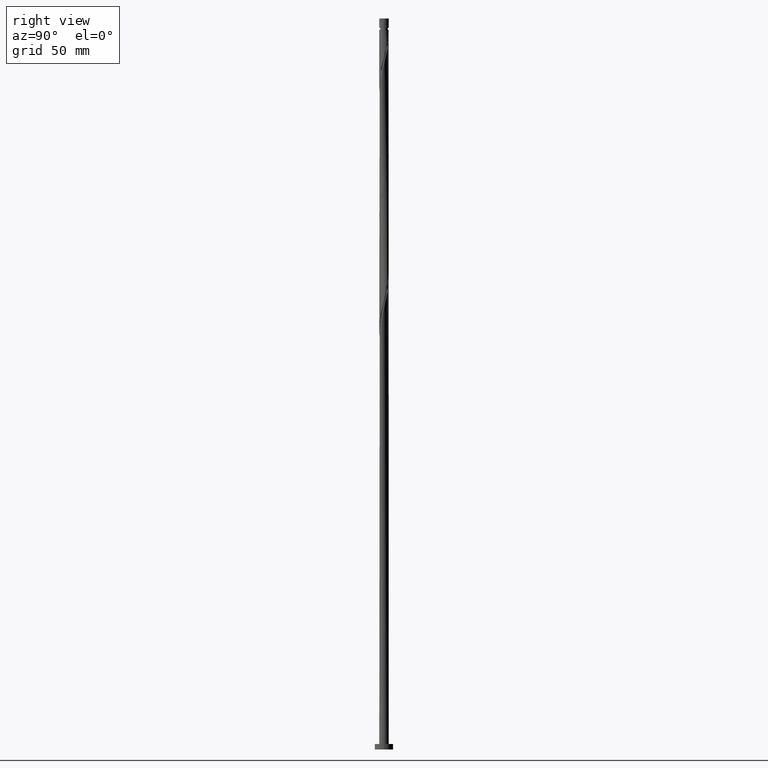
[diagram: clean part render]
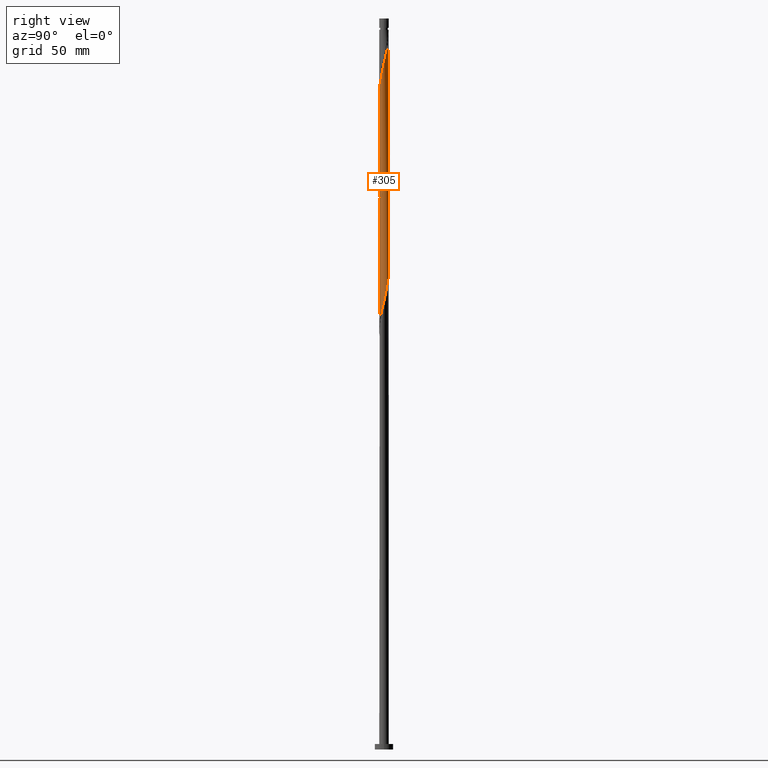
[diagram: same view with one face highlighted and labeled with its STEP entity id]
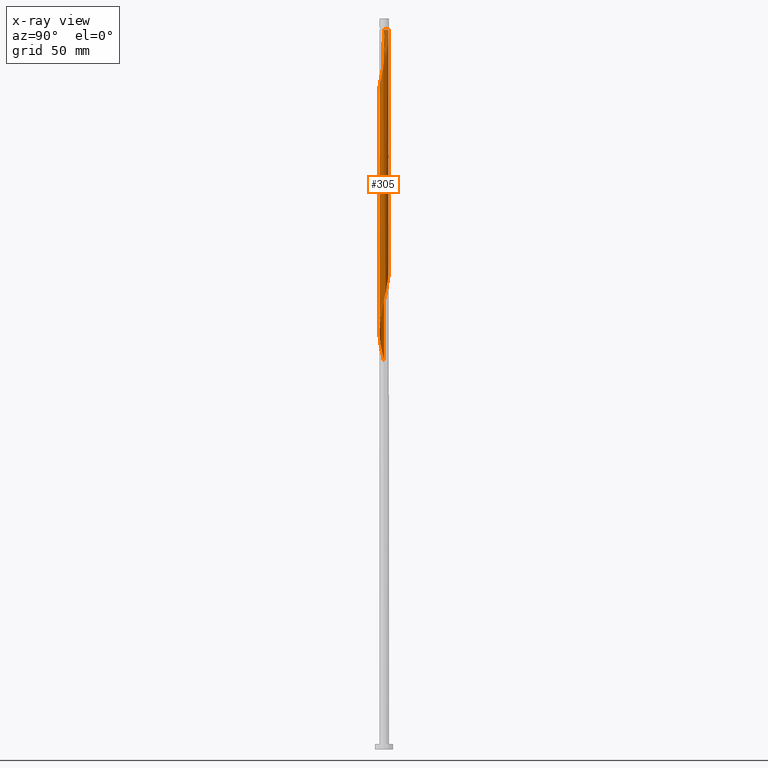
[diagram: x-ray of the same camera — body ghosted, the highlighted face saturated]
A machine part, right view. The second image highlights one B-rep face of the part: STEP entity #305.
The next image is the same camera in x-ray: the body ghosted, the highlighted face saturated — about 0% of this face is hidden behind the body in this view.
In plain terms, the highlighted cylindrical surface (bore or boss wall) has radius 2.6 mm, axis along (-0, -0, -1).
Its self-contained STEP definition (entity closure, byte-faithful):
#9 = CARTESIAN_POINT ( 'NONE',  ( 2.378521340146212193, 1.085040681403031337, 317.1946186715028944 ) ) ;
#11 = CARTESIAN_POINT ( 'NONE',  ( 2.397883794386646450, -1.041551897145976069, 308.3057297826140939 ) ) ;
#22 = CARTESIAN_POINT ( 'NONE',  ( 1.947935995195025471, -1.722075886429970115, 304.9723964492809500 ) ) ;
#32 = CARTESIAN_POINT ( 'NONE',  ( 2.588124133439476005, -0.2482206073398504076, 244.9723964492808079 ) ) ;
#35 = VERTEX_POINT ( 'NONE', #698 ) ;
#41 = CARTESIAN_POINT ( 'NONE',  ( 1.547329210818890077, 2.089443062958790343, 384.9723964492807227 ) ) ;
#42 = CARTESIAN_POINT ( 'NONE',  ( 2.397883794386646450, -1.041551897145976069, 241.6390631159474083 ) ) ;
#51 = CARTESIAN_POINT ( 'NONE',  ( -2.479959445357243553, 0.7808976561518116144, 276.0835075603920359 ) ) ;
#62 = CARTESIAN_POINT ( 'NONE',  ( 0.7851990587523896004, -2.493619755288459139, 361.6390631159473514 ) ) ;
#63 = CARTESIAN_POINT ( 'NONE',  ( -1.547329210818885414, 2.089443062958788566, 269.4168408937252366 ) ) ;
#66 = ORIENTED_EDGE ( 'NONE', *, *, #1016, .F. ) ;
#72 = CARTESIAN_POINT ( 'NONE',  ( 1.079096715020629205, 2.365491551376099899, 387.1946186715029512 ) ) ;
#73 = CARTESIAN_POINT ( 'NONE',  ( -1.286493274995682334, -2.275876116844097297, 223.8612853381695800 ) ) ;
#81 = CARTESIAN_POINT ( 'NONE',  ( 0.2495878758385028096, 2.602380244711542723, 328.3057297826139802 ) ) ;
#84 = FACE_OUTER_BOUND ( 'NONE', #923, .T. ) ;
#92 = CARTESIAN_POINT ( 'NONE',  ( -2.552137584834730966, -0.5668075457370269632, 214.9723964492807511 ) ) ;
#98 = LINE ( 'NONE', #687, #897 ) ;
#100 = CARTESIAN_POINT ( 'NONE',  ( -2.479959445357248438, -0.7808976561518115034, 344.9723964492808932 ) ) ;
#131 = CARTESIAN_POINT ( 'NONE',  ( -1.079096715020628761, -2.365491551376099899, 353.8612853381695800 ) ) ;
#134 = CARTESIAN_POINT ( 'NONE',  ( -0.5173934672954466629, -2.547999999999998266, 293.8612853381696937 ) ) ;
#140 = ORIENTED_EDGE ( 'NONE', *, *, #1310, .T. ) ;
#154 = CARTESIAN_POINT ( 'NONE',  ( 0.2969314949050323449, -2.597404229834846312, 297.1946186715029512 ) ) ;
#157 = ORIENTED_EDGE ( 'NONE', *, *, #853, .F. ) ;
#168 = CARTESIAN_POINT ( 'NONE',  ( 2.599999999999999645, 2.989683084132957886E-16, 312.6533952483578105 ) ) ;
#176 = CARTESIAN_POINT ( 'NONE',  ( 2.397883794386653111, 1.041551897145974737, 379.4168408937251797 ) ) ;
#177 = CARTESIAN_POINT ( 'NONE',  ( -0.8304735344858227286, 2.478909186386042407, 266.0835075603918654 ) ) ;
#184 = EDGE_CURVE ( 'NONE', #333, #35, #1865, .T. ) ;
#188 = CARTESIAN_POINT ( 'NONE',  ( 0.5173934672954464409, -2.548000000000003151, 360.5279520048362656 ) ) ;
#189 = CARTESIAN_POINT ( 'NONE',  ( 1.947935995195025471, -1.722075886429970115, 238.3057297826140655 ) ) ;
#196 = CARTESIAN_POINT ( 'NONE',  ( 0.02367180953326419868, -2.599892237273194961, 229.4168408937252082 ) ) ;
#205 = CARTESIAN_POINT ( 'NONE',  ( 1.509027418418850353, -2.117270944036251823, 364.9723964492807795 ) ) ;
#206 = CARTESIAN_POINT ( 'NONE',  ( -2.378521340146212193, -1.085040681403031559, 283.8612853381696368 ) ) ;
#215 = CARTESIAN_POINT ( 'NONE',  ( 2.479959445357248438, 0.7808976561518106152, 378.3057297826140939 ) ) ;
#216 = CARTESIAN_POINT ( 'NONE',  ( -0.5637025146954277588, 2.538156708110444804, 264.9723964492808364 ) ) ;
#227 = CARTESIAN_POINT ( 'NONE',  ( -2.599999999999998757, 0.1243943981455614828, 345.4781800561270302 ) ) ;
#238 = CARTESIAN_POINT ( 'NONE',  ( -2.562035096327837547, 0.5202434151576464938, 343.8612853381695800 ) ) ;
#245 = CARTESIAN_POINT ( 'NONE',  ( -2.600000000000004974, -0.1243943981455340880, 342.2443906202120729 ) ) ;
#246 = EDGE_CURVE ( 'NONE', #333, #652, #823, .T. ) ;
#259 = CARTESIAN_POINT ( 'NONE',  ( -2.128933464307713130, -1.517339563308513162, 348.3057297826140939 ) ) ;
#261 = CARTESIAN_POINT ( 'NONE',  ( -0.5637025146954277588, 2.538156708110444804, 331.6390631159474651 ) ) ;
#299 = CARTESIAN_POINT ( 'NONE',  ( 1.079096715020626096, -2.365491551376097235, 300.5279520048363224 ) ) ;
#305 = ADVANCED_FACE ( 'NONE', ( #84 ), #1287, .T. ) ;
#307 = CARTESIAN_POINT ( 'NONE',  ( -2.600000000000003197, 9.118533406605447967E-16, 341.7358420946480919 ) ) ;
#309 = CARTESIAN_POINT ( 'NONE',  ( 1.766938526082341365, -1.926812209551426402, 303.8612853381696368 ) ) ;
#327 = CARTESIAN_POINT ( 'NONE',  ( -0.5173934672955170511, 2.548000000000707477, 393.8612853381695800 ) ) ;
#328 = CARTESIAN_POINT ( 'NONE',  ( 1.035846166874037744, 2.384747936066275997, 258.3057297826142076 ) ) ;
#333 = VERTEX_POINT ( 'NONE', #998 ) ;
#338 = CARTESIAN_POINT ( 'NONE',  ( -1.766938526082341365, 1.926812209551426402, 270.5279520048362656 ) ) ;
#348 = CARTESIAN_POINT ( 'NONE',  ( -1.947935995195025916, 1.722075886429969449, 271.6390631159474083 ) ) ;
#358 = CARTESIAN_POINT ( 'NONE',  ( -2.239736819813914259, -1.320446507045950790, 218.3057297826141507 ) ) ;
#367 = CARTESIAN_POINT ( 'NONE',  ( 2.465329462490476242, -0.8259241135700327030, 371.6390631159474083 ) ) ;
#368 = CARTESIAN_POINT ( 'NONE',  ( 2.465329462490473578, 0.8259241135700279290, 249.4168408937252366 ) ) ;
#383 = DIRECTION ( 'NONE',  ( -0.000000000000000000, -0.000000000000000000, -1.000000000000000000 ) ) ;
#406 = CARTESIAN_POINT ( 'NONE',  ( -2.600000000000003197, 9.118533406605447967E-16, 341.7358420946480919 ) ) ;
#408 = CARTESIAN_POINT ( 'NONE',  ( -2.128933464307709134, 1.517339563308511607, 339.4168408937250661 ) ) ;
#414 = CARTESIAN_POINT ( 'NONE',  ( -1.547329210818889189, -2.089443062958790343, 351.6390631159474651 ) ) ;
#418 = DIRECTION ( 'NONE',  ( -0.000000000000000000, -0.000000000000000000, -1.000000000000000000 ) ) ;
#425 = CARTESIAN_POINT ( 'NONE',  ( 0.02367180953326419868, -2.599892237273194961, 296.0835075603919790 ) ) ;
#440 = CARTESIAN_POINT ( 'NONE',  ( 2.600000000000000089, 3.184081677783118191E-16, 393.8612853381696368 ) ) ;
#468 = CARTESIAN_POINT ( 'NONE',  ( 1.916256930661816238, 1.757259051958633744, 253.8612853381696937 ) ) ;
#477 = CARTESIAN_POINT ( 'NONE',  ( -2.552137584834730966, -0.5668075457370269632, 281.6390631159473514 ) ) ;
#489 = CARTESIAN_POINT ( 'NONE',  ( 0.8304735344858218404, -2.478909186386042407, 232.7501742270584657 ) ) ;
#500 = CARTESIAN_POINT ( 'NONE',  ( -1.731561561842015928, -1.958665771228395025, 221.6390631159473514 ) ) ;
#509 = CARTESIAN_POINT ( 'NONE',  ( 0.2495878758385020879, -2.602380244711547164, 359.4168408937251797 ) ) ;
#510 = CARTESIAN_POINT ( 'NONE',  ( -1.916256930661816238, -1.757259051958633966, 287.1946186715029512 ) ) ;
#518 = CARTESIAN_POINT ( 'NONE',  ( 0.2969314949050343433, 2.597404229834851197, 390.5279520048362656 ) ) ;
#519 = CARTESIAN_POINT ( 'NONE',  ( -1.079096715020626318, 2.365491551376097235, 333.8612853381697505 ) ) ;
#528 = CARTESIAN_POINT ( 'NONE',  ( -2.588124133439476005, 0.2482206073398494917, 344.9723964492808364 ) ) ;
#539 = CARTESIAN_POINT ( 'NONE',  ( -1.766938526082341365, 1.926812209551426402, 337.1946186715028944 ) ) ;
#544 = DIRECTION ( 'NONE',  ( -0.000000000000000000, -0.000000000000000000, -1.000000000000000000 ) ) ;
#545 = CARTESIAN_POINT ( 'NONE',  ( -2.263408629347182899, -1.279445730227244837, 347.1946186715029512 ) ) ;
#555 = AXIS2_PLACEMENT_3D ( 'NONE', #674, #1872, #1718 ) ;
#571 = CARTESIAN_POINT ( 'NONE',  ( -0.8304735344858255042, -2.478909186386046848, 354.9723964492806658 ) ) ;
#575 = CARTESIAN_POINT ( 'NONE',  ( -1.731561561842015928, -1.958665771228395025, 288.3057297826139234 ) ) ;
#588 = AXIS2_PLACEMENT_3D ( 'NONE', #1440, #418, #1305 ) ;
#594 = CARTESIAN_POINT ( 'NONE',  ( 2.599999999999999201, 0.1481317173607265836, 313.2589865577425030 ) ) ;
#604 = CARTESIAN_POINT ( 'NONE',  ( 2.583175377692922048, 0.2953048731074875421, 313.8612853381696368 ) ) ;
#606 = CARTESIAN_POINT ( 'NONE',  ( 1.547329210818884970, -2.089443062958789010, 302.7501742270585510 ) ) ;
#615 = CARTESIAN_POINT ( 'NONE',  ( 1.327719895555428131, -2.252073916366149398, 301.6390631159474083 ) ) ;
#623 = CARTESIAN_POINT ( 'NONE',  ( 2.378521340146216190, -1.085040681403034446, 370.5279520048363224 ) ) ;
#624 = CARTESIAN_POINT ( 'NONE',  ( 2.479959445357243109, -0.7808976561518128356, 242.7501742270585510 ) ) ;
#632 = CARTESIAN_POINT ( 'NONE',  ( 0.02367180953326681811, 2.599892237273200291, 391.6390631159474651 ) ) ;
#633 = CARTESIAN_POINT ( 'NONE',  ( 2.263408629347178458, -1.279445730227243949, 240.5279520048364077 ) ) ;
#640 = CARTESIAN_POINT ( 'NONE',  ( -0.2969314949050327335, 2.597404229834846312, 263.8612853381695800 ) ) ;
#648 = CARTESIAN_POINT ( 'NONE',  ( -0.02367180953326649892, -2.599892237273200291, 358.3057297826140939 ) ) ;
#649 = CARTESIAN_POINT ( 'NONE',  ( -2.100952299481614993, -1.555852332688870243, 286.0835075603919222 ) ) ;
#652 = VERTEX_POINT ( 'NONE', #910 ) ;
#658 = CARTESIAN_POINT ( 'NONE',  ( 2.562035096327842432, 0.5202434151576467158, 377.1946186715029512 ) ) ;
#659 = CARTESIAN_POINT ( 'NONE',  ( -2.599999999999999645, -1.315460557018501568E-15, 212.6533952483578389 ) ) ;
#674 = CARTESIAN_POINT ( 'NONE',  ( 0.000000000000000000, 0.000000000000000000, 400.0000000000000000 ) ) ;
#681 = CARTESIAN_POINT ( 'NONE',  ( 1.035846166874037744, 2.384747936066275997, 324.9723964492808932 ) ) ;
#687 = CARTESIAN_POINT ( 'NONE',  ( 2.600000000000000089, 3.184081677783118191E-16, 400.0000000000000000 ) ) ;
#688 = CARTESIAN_POINT ( 'NONE',  ( -2.397883794386652667, -1.041551897145975625, 346.0835075603918654 ) ) ;
#698 = CARTESIAN_POINT ( 'NONE',  ( -0.5173934672955170511, 2.548000000000707921, 393.8612853381695800 ) ) ;
#715 = CARTESIAN_POINT ( 'NONE',  ( -1.035846166874037078, -2.384747936066275997, 291.6390631159475220 ) ) ;
#738 = CARTESIAN_POINT ( 'NONE',  ( -1.286493274995682334, -2.275876116844097297, 290.5279520048363224 ) ) ;
#764 = CARTESIAN_POINT ( 'NONE',  ( 2.263408629347182899, 1.279445730227244393, 380.5279520048364361 ) ) ;
#765 = CARTESIAN_POINT ( 'NONE',  ( 2.614213170551110910, 0.02380220047794641761, 246.0835075603918369 ) ) ;
#775 = CARTESIAN_POINT ( 'NONE',  ( 1.947935995195030801, 1.722075886429970115, 382.7501742270586078 ) ) ;
#776 = CARTESIAN_POINT ( 'NONE',  ( 1.547329210818884970, -2.089443062958789010, 236.0835075603919222 ) ) ;
#780 = VERTEX_POINT ( 'NONE', #1621 ) ;
#785 = CARTESIAN_POINT ( 'NONE',  ( -0.2495878758385039475, -2.602380244711543167, 228.3057297826140655 ) ) ;
#796 = CARTESIAN_POINT ( 'NONE',  ( -2.562035096327837547, 0.5202434151576464938, 277.1946186715028944 ) ) ;
#806 = CARTESIAN_POINT ( 'NONE',  ( 2.128933464307713130, 1.517339563308512274, 381.6390631159472946 ) ) ;
#807 = CARTESIAN_POINT ( 'NONE',  ( -0.5173934672954466629, -2.547999999999998266, 227.1946186715030365 ) ) ;
#820 = CARTESIAN_POINT ( 'NONE',  ( -1.327719895555428797, 2.252073916366149398, 334.9723964492807795 ) ) ;
#823 = LINE ( 'NONE', #831, #1234 ) ;
#829 = CARTESIAN_POINT ( 'NONE',  ( -2.479959445357243553, 0.7808976561518116144, 342.7501742270584941 ) ) ;
#831 = CARTESIAN_POINT ( 'NONE',  ( -2.600000000000000089, 0.000000000000000000, 400.0000000000000000 ) ) ;
#849 = CARTESIAN_POINT ( 'NONE',  ( -1.947935995195029468, -1.722075886429971003, 349.4168408937252366 ) ) ;
#851 = CARTESIAN_POINT ( 'NONE',  ( -0.2969314949050327335, 2.597404229834846312, 330.5279520048362656 ) ) ;
#853 = EDGE_CURVE ( 'NONE', #780, #1828, #1313, .T. ) ;
#859 = CARTESIAN_POINT ( 'NONE',  ( -1.327719895555432350, -2.252073916366152506, 352.7501742270584941 ) ) ;
#897 = VECTOR ( 'NONE', #544, 1000.000000000000000 ) ;
#910 = CARTESIAN_POINT ( 'NONE',  ( -2.600000000000000089, 3.587619700959548970E-16, 345.9867285816911817 ) ) ;
#920 = CARTESIAN_POINT ( 'NONE',  ( -2.263408629347178458, 1.279445730227243949, 273.8612853381697505 ) ) ;
#923 = EDGE_LOOP ( 'NONE', ( #1246, #1098, #1522, #1037, #157, #1046, #140, #66 ) ) ;
#929 = CARTESIAN_POINT ( 'NONE',  ( -0.2969314949050338992, -2.597404229834851197, 357.1946186715028944 ) ) ;
#930 = CARTESIAN_POINT ( 'NONE',  ( 1.286493274995683000, 2.275876116844097297, 257.1946186715030080 ) ) ;
#938 = CARTESIAN_POINT ( 'NONE',  ( 0.8304735344858259483, 2.478909186386046848, 388.3057297826140939 ) ) ;
#939 = CARTESIAN_POINT ( 'NONE',  ( 2.552137584834731410, 0.5668075457370260750, 248.3057297826140939 ) ) ;
#948 = CARTESIAN_POINT ( 'NONE',  ( -2.378521340146212193, -1.085040681403031559, 217.1946186715030080 ) ) ;
#955 = CARTESIAN_POINT ( 'NONE',  ( 2.583175377692926489, -0.2953048731074893185, 373.8612853381696368 ) ) ;
#956 = CARTESIAN_POINT ( 'NONE',  ( 2.583175377692922048, 0.2953048731074875421, 247.1946186715030649 ) ) ;
#986 = CARTESIAN_POINT ( 'NONE',  ( -2.583175377692922048, -0.2953048731074877642, 213.8612853381696937 ) ) ;
#996 = CARTESIAN_POINT ( 'NONE',  ( -2.263408629347178458, 1.279445730227243949, 340.5279520048364361 ) ) ;
#998 = CARTESIAN_POINT ( 'NONE',  ( -2.599999999999964118, 0.000000000000000000, 393.8612853381696368 ) ) ;
#1016 = EDGE_CURVE ( 'NONE', #652, #780, #1446, .T. ) ;
#1034 = CARTESIAN_POINT ( 'NONE',  ( 2.600000000000000089, -0.1243943981455472997, 312.1448467227938295 ) ) ;
#1037 = ORIENTED_EDGE ( 'NONE', *, *, #1417, .T. ) ;
#1046 = ORIENTED_EDGE ( 'NONE', *, *, #1310, .F. ) ;
#1060 = CARTESIAN_POINT ( 'NONE',  ( -0.02367180953326483012, 2.599892237273194961, 262.7501742270586078 ) ) ;
#1064 = LINE ( 'NONE', #1189, #1887 ) ;
#1067 = CARTESIAN_POINT ( 'NONE',  ( -2.397883794386647338, 1.041551897145974959, 274.9723964492807227 ) ) ;
#1072 = VERTEX_POINT ( 'NONE', #307 ) ;
#1077 = CARTESIAN_POINT ( 'NONE',  ( 1.327719895555433904, 2.252073916366151618, 386.0835075603917517 ) ) ;
#1078 = CARTESIAN_POINT ( 'NONE',  ( 0.2969314949050323449, -2.597404229834846312, 230.5279520048362940 ) ) ;
#1086 = CARTESIAN_POINT ( 'NONE',  ( -1.916256930661816238, -1.757259051958633966, 220.5279520048363793 ) ) ;
#1094 = CARTESIAN_POINT ( 'NONE',  ( -0.5637025146954297572, -2.538156708110448800, 356.0835075603918654 ) ) ;
#1095 = CARTESIAN_POINT ( 'NONE',  ( -1.327719895555428797, 2.252073916366149398, 268.3057297826140370 ) ) ;
#1098 = ORIENTED_EDGE ( 'NONE', *, *, #184, .T. ) ;
#1107 = CARTESIAN_POINT ( 'NONE',  ( -0.02367180953326483012, 2.599892237273194961, 329.4168408937253503 ) ) ;
#1114 =( BOUNDED_CURVE ( )  B_SPLINE_CURVE ( 2, ( #406, #245, #1148, #1429, #100, #688, #545, #259, #849, #1722, #414, #859, #131, #571, #1094, #929, #648, #509, #188, #62, #1638, #1526, #205, #1676, #1242, #1371, #1806, #623, #367, #1826, #955, #1538, #1214, #658, #215, #176, #764, #806, #775, #1362, #41, #1077, #72, #938, #1253, #518, #632, #1785, #327 ),
 .UNSPECIFIED., .F., .T. ) 
 B_SPLINE_CURVE_WITH_KNOTS ( ( 3, 2, 2, 2, 2, 2, 2, 2, 2, 2, 2, 2, 2, 2, 2, 2, 2, 2, 2, 2, 2, 2, 2, 2, 3 ),
 ( 0.5545286012773109618, 0.5583333333333333481, 0.5666666666666666519, 0.5749999999999999556, 0.5833333333333332593, 0.5916666666666666741, 0.5999999999999999778, 0.6083333333333333925, 0.6166666666666666963, 0.6250000000000000000, 0.6333333333333333037, 0.6416666666666666075, 0.6500000000000001332, 0.6583333333333334370, 0.6666666666666667407, 0.6750000000000001554, 0.6833333333333334592, 0.6916666666666667629, 0.7000000000000000666, 0.7083333333333333703, 0.7166666666666667851, 0.7250000000000000888, 0.7333333333333335036, 0.7416666666666668073, 0.7500000000000001110 ),
 .UNSPECIFIED. ) 
 CURVE ( )  GEOMETRIC_REPRESENTATION_ITEM ( )  RATIONAL_B_SPLINE_CURVE ( ( 0.9066196499552594545, 0.9068171577856718457, 0.9090909090909711221, 0.9041108139712192848, 0.9090909090909711221, 0.9041108139712192848, 0.9090909090909711221, 0.9041108139712192848, 0.9090909090909711221, 0.9041108139712192848, 0.9090909090909711221, 0.9041108139712192848, 0.9090909090909711221, 0.9041108139712192848, 0.9090909090909711221, 0.9041108139712192848, 0.9090909090909711221, 0.9041108139712192848, 0.9090909090909711221, 0.9041108139712192848, 0.9090909090909711221, 0.9041108139712192848, 0.9090909090909711221, 0.9041108139712192848, 0.9090909090909711221, 0.9041108139712192848, 0.9090909090909711221, 0.9041108139712192848, 0.9090909090909711221, 0.9041108139712192848, 0.9090909090909711221, 0.9041108139712192848, 0.9090909090909711221, 0.9041108139712192848, 0.9090909090909711221, 0.9041108139712192848, 0.9090909090909711221, 0.9041108139712192848, 0.9090909090909711221, 0.9041108139712192848, 0.9090909090909711221, 0.9041108139712192848, 0.9090909090909711221, 0.9041108139712192848, 0.9090909090909711221, 0.9041108139712192848, 0.9090909090909711221, 0.9041108139712191738, 0.9090909090909712331 ) ) 
 REPRESENTATION_ITEM ( '' )  );
#1128 = CARTESIAN_POINT ( 'NONE',  ( 1.731561561842015928, 1.958665771228395025, 321.6390631159473514 ) ) ;
#1140 = CARTESIAN_POINT ( 'NONE',  ( -0.8304735344858227286, 2.478909186386042407, 332.7501742270583804 ) ) ;
#1148 = CARTESIAN_POINT ( 'NONE',  ( -2.588124133439479113, -0.2482206073398485480, 342.7501742270585510 ) ) ;
#1149 = CARTESIAN_POINT ( 'NONE',  ( 0.7851990587523917098, 2.493619755288453366, 326.0835075603918654 ) ) ;
#1167 = CARTESIAN_POINT ( 'NONE',  ( 2.479959445357243109, -0.7808976561518128356, 309.4168408937252366 ) ) ;
#1185 = CARTESIAN_POINT ( 'NONE',  ( 2.588124133439476005, -0.2482206073398504076, 311.6390631159475220 ) ) ;
#1189 = CARTESIAN_POINT ( 'NONE',  ( -2.600000000000000089, 0.000000000000000000, 400.0000000000000000 ) ) ;
#1205 = CARTESIAN_POINT ( 'NONE',  ( -2.614213170551110910, -0.02380220047794789906, 279.4168408937251229 ) ) ;
#1214 = CARTESIAN_POINT ( 'NONE',  ( 2.588124133439479557, 0.2482206073398471602, 376.0835075603918654 ) ) ;
#1215 = CARTESIAN_POINT ( 'NONE',  ( 2.562035096327837547, -0.5202434151576468269, 243.8612853381696084 ) ) ;
#1224 = CARTESIAN_POINT ( 'NONE',  ( 1.327719895555428131, -2.252073916366149398, 234.9723964492807227 ) ) ;
#1232 = CARTESIAN_POINT ( 'NONE',  ( -1.035846166874037078, -2.384747936066275997, 224.9723964492807795 ) ) ;
#1234 = VECTOR ( 'NONE', #383, 1000.000000000000000 ) ;
#1242 = CARTESIAN_POINT ( 'NONE',  ( 1.916256930661818236, -1.757259051958636853, 367.1946186715030080 ) ) ;
#1243 = CARTESIAN_POINT ( 'NONE',  ( 1.731561561842015928, 1.958665771228395025, 254.9723964492807227 ) ) ;
#1246 = ORIENTED_EDGE ( 'NONE', *, *, #246, .F. ) ;
#1253 = CARTESIAN_POINT ( 'NONE',  ( 0.5637025146954313115, 2.538156708110447912, 389.4168408937251229 ) ) ;
#1254 = CARTESIAN_POINT ( 'NONE',  ( -2.600000000000000089, 3.587619700959548970E-16, 345.9867285816912386 ) ) ;
#1264 = CARTESIAN_POINT ( 'NONE',  ( -2.465329462490473134, -0.8259241135700291503, 216.0835075603919506 ) ) ;
#1275 = CARTESIAN_POINT ( 'NONE',  ( 1.286493274995683000, 2.275876116844097297, 323.8612853381695800 ) ) ;
#1287 = CYLINDRICAL_SURFACE ( 'NONE', #555, 2.600000000000000089 ) ;
#1295 = CARTESIAN_POINT ( 'NONE',  ( 2.100952299481615881, 1.555852332688868911, 319.4168408937252366 ) ) ;
#1305 = DIRECTION ( 'NONE',  ( -1.000000000000000000, 0.000000000000000000, 0.000000000000000000 ) ) ;
#1310 = EDGE_CURVE ( 'NONE', #1543, #780, #98, .T. ) ;
#1313 =( BOUNDED_CURVE ( )  B_SPLINE_CURVE ( 2, ( #168, #1034, #1185, #1351, #1167, #11, #1611, #1760, #22, #309, #606, #615, #299, #1733, #1474, #154, #425, #1455, #134, #1314, #715, #738, #1880, #575, #510, #649, #1786, #206, #1387, #477, #1527, #1205, #1777, #796, #51, #1067, #920, #1816, #348, #338, #63, #1095, #1677, #177, #216, #640, #1060, #1639, #1807, #1647, #328, #930, #1659, #1243, #468, #1498, #1363, #1510, #368, #939, #956, #765, #32, #1215, #624, #42, #633, #1540, #189, #1372, #776, #1224, #1794, #489, #1519, #1078, #196, #785, #807, #1379, #1232, #73, #1398, #500, #1086, #1669, #358, #948, #1264, #92, #986, #1568, #659 ),
 .UNSPECIFIED., .F., .T. ) 
 B_SPLINE_CURVE_WITH_KNOTS ( ( 3, 2, 2, 2, 2, 2, 2, 2, 2, 2, 2, 2, 2, 2, 2, 2, 2, 2, 2, 2, 2, 2, 2, 2, 2, 2, 2, 2, 2, 2, 2, 2, 2, 2, 2, 2, 2, 2, 2, 2, 2, 2, 2, 2, 2, 2, 3 ),
 ( 0.5545286012773112949, 0.5583333333333333481, 0.5666666666666666519, 0.5749999999999999556, 0.5833333333333333703, 0.5916666666666666741, 0.5999999999999999778, 0.6083333333333332815, 0.6166666666666666963, 0.6250000000000000000, 0.6333333333333333037, 0.6416666666666667185, 0.6500000000000000222, 0.6583333333333333259, 0.6666666666666666297, 0.6750000000000000444, 0.6833333333333333481, 0.6916666666666666519, 0.6999999999999999556, 0.7083333333333333703, 0.7166666666666666741, 0.7249999999999999778, 0.7333333333333332815, 0.7416666666666666963, 0.7500000000000000000, 0.7583333333333333037, 0.7666666666666667185, 0.7750000000000000222, 0.7833333333333333259, 0.7916666666666666297, 0.8000000000000000444, 0.8083333333333333481, 0.8166666666666666519, 0.8249999999999999556, 0.8333333333333333703, 0.8416666666666666741, 0.8499999999999999778, 0.8583333333333332815, 0.8666666666666666963, 0.8750000000000000000, 0.8833333333333333037, 0.8916666666666667185, 0.9000000000000000222, 0.9083333333333333259, 0.9166666666666666297, 0.9250000000000000444, 0.9295286012773116280 ),
 .UNSPECIFIED. ) 
 CURVE ( )  GEOMETRIC_REPRESENTATION_ITEM ( )  RATIONAL_B_SPLINE_CURVE ( ( 0.9066196499552521271, 0.9068171577856648513, 0.9090909090909637946, 0.9041108139712121794, 0.9090909090909637946, 0.9041108139712121794, 0.9090909090909637946, 0.9041108139712121794, 0.9090909090909637946, 0.9041108139712121794, 0.9090909090909637946, 0.9041108139712121794, 0.9090909090909637946, 0.9041108139712121794, 0.9090909090909637946, 0.9041108139712121794, 0.9090909090909637946, 0.9041108139712121794, 0.9090909090909637946, 0.9041108139712121794, 0.9090909090909637946, 0.9041108139712121794, 0.9090909090909637946, 0.9041108139712121794, 0.9090909090909637946, 0.9041108139712121794, 0.9090909090909637946, 0.9041108139712121794, 0.9090909090909637946, 0.9041108139712121794, 0.9090909090909637946, 0.9041108139712121794, 0.9090909090909637946, 0.9041108139712121794, 0.9090909090909637946, 0.9041108139712121794, 0.9090909090909637946, 0.9041108139712121794, 0.9090909090909637946, 0.9041108139712121794, 0.9090909090909637946, 0.9041108139712121794, 0.9090909090909637946, 0.9041108139712121794, 0.9090909090909637946, 0.9041108139712121794, 0.9090909090909637946, 0.9041108139712121794, 0.9090909090909637946, 0.9041108139712121794, 0.9090909090909637946, 0.9041108139712121794, 0.9090909090909637946, 0.9041108139712121794, 0.9090909090909637946, 0.9041108139712121794, 0.9090909090909637946, 0.9041108139712121794, 0.9090909090909637946, 0.9041108139712121794, 0.9090909090909637946, 0.9041108139712121794, 0.9090909090909637946, 0.9041108139712121794, 0.9090909090909637946, 0.9041108139712121794, 0.9090909090909637946, 0.9041108139712121794, 0.9090909090909637946, 0.9041108139712121794, 0.9090909090909637946, 0.9041108139712121794, 0.9090909090909637946, 0.9041108139712121794, 0.9090909090909637946, 0.9041108139712121794, 0.9090909090909637946, 0.9041108139712121794, 0.9090909090909637946, 0.9041108139712121794, 0.9090909090909637946, 0.9041108139712121794, 0.9090909090909637946, 0.9041108139712121794, 0.9090909090909637946, 0.9041108139712121794, 0.9090909090909637946, 0.9041108139712121794, 0.9090909090909637946, 0.9041108139712121794, 0.9090909090909637946, 0.9063845652765110117, 0.9066196499552521271 ) ) 
 REPRESENTATION_ITEM ( '' )  );
#1314 = CARTESIAN_POINT ( 'NONE',  ( -0.7851990587523902665, -2.493619755288453366, 292.7501742270584373 ) ) ;
#1330 = CARTESIAN_POINT ( 'NONE',  ( 2.552137584834731410, 0.5668075457370260750, 314.9723964492806658 ) ) ;
#1351 = CARTESIAN_POINT ( 'NONE',  ( 2.562035096327837547, -0.5202434151576468269, 310.5279520048362656 ) ) ;
#1362 = CARTESIAN_POINT ( 'NONE',  ( 1.766938526082345140, 1.926812209551428623, 383.8612853381695800 ) ) ;
#1363 = CARTESIAN_POINT ( 'NONE',  ( 2.239736819813914703, 1.320446507045950568, 251.6390631159474651 ) ) ;
#1371 = CARTESIAN_POINT ( 'NONE',  ( 2.100952299481617214, -1.555852332688874462, 368.3057297826139802 ) ) ;
#1372 = CARTESIAN_POINT ( 'NONE',  ( 1.766938526082341365, -1.926812209551426402, 237.1946186715029512 ) ) ;
#1379 = CARTESIAN_POINT ( 'NONE',  ( -0.7851990587523902665, -2.493619755288453366, 226.0835075603918938 ) ) ;
#1387 = CARTESIAN_POINT ( 'NONE',  ( -2.465329462490473134, -0.8259241135700291503, 282.7501742270586647 ) ) ;
#1398 = CARTESIAN_POINT ( 'NONE',  ( -1.509027418418849686, -2.117270944036247826, 222.7501742270586078 ) ) ;
#1407 = CARTESIAN_POINT ( 'NONE',  ( -1.947935995195025916, 1.722075886429969449, 338.3057297826142076 ) ) ;
#1417 = EDGE_CURVE ( 'NONE', #1072, #1828, #1064, .T. ) ;
#1421 = CARTESIAN_POINT ( 'NONE',  ( 0.5173934672954469960, 2.547999999999998266, 327.1946186715030080 ) ) ;
#1429 = CARTESIAN_POINT ( 'NONE',  ( -2.562035096327842432, -0.5202434151576470489, 343.8612853381696368 ) ) ;
#1438 = CARTESIAN_POINT ( 'NONE',  ( 1.509027418418851019, 2.117270944036246494, 322.7501742270586078 ) ) ;
#1440 = CARTESIAN_POINT ( 'NONE',  ( 0.000000000000000000, 0.000000000000000000, 393.8612853381696368 ) ) ;
#1446 =( BOUNDED_CURVE ( )  B_SPLINE_CURVE ( 2, ( #1254, #227, #528, #238, #829, #1843, #996, #408, #1407, #539, #1549, #820, #519, #1140, #261, #851, #1107, #81, #1421, #1149, #681, #1275, #1438, #1128, #1724, #1295, #1861, #9, #1870, #1330, #604, #594, #1471 ),
 .UNSPECIFIED., .F., .T. ) 
 B_SPLINE_CURVE_WITH_KNOTS ( ( 3, 2, 2, 2, 2, 2, 2, 2, 2, 2, 2, 2, 2, 2, 2, 2, 3 ),
 ( 0.4295286012773117390, 0.4333333333333333481, 0.4416666666666666519, 0.4500000000000000111, 0.4583333333333333148, 0.4666666666666666741, 0.4749999999999999778, 0.4833333333333333370, 0.4916666666666666408, 0.5000000000000000000, 0.5083333333333333037, 0.5166666666666667185, 0.5250000000000000222, 0.5333333333333333259, 0.5416666666666666297, 0.5500000000000000444, 0.5545286012773112949 ),
 .UNSPECIFIED. ) 
 CURVE ( )  GEOMETRIC_REPRESENTATION_ITEM ( )  RATIONAL_B_SPLINE_CURVE ( ( 0.9066196499552522381, 0.9068171577856650734, 0.9090909090909637946, 0.9041108139712121794, 0.9090909090909637946, 0.9041108139712121794, 0.9090909090909637946, 0.9041108139712121794, 0.9090909090909637946, 0.9041108139712121794, 0.9090909090909637946, 0.9041108139712121794, 0.9090909090909637946, 0.9041108139712121794, 0.9090909090909637946, 0.9041108139712121794, 0.9090909090909637946, 0.9041108139712121794, 0.9090909090909637946, 0.9041108139712121794, 0.9090909090909637946, 0.9041108139712121794, 0.9090909090909637946, 0.9041108139712121794, 0.9090909090909637946, 0.9041108139712121794, 0.9090909090909637946, 0.9041108139712121794, 0.9090909090909637946, 0.9041108139712121794, 0.9090909090909637946, 0.9063845652765111227, 0.9066196499552521271 ) ) 
 REPRESENTATION_ITEM ( '' )  );
#1455 = CARTESIAN_POINT ( 'NONE',  ( -0.2495878758385039475, -2.602380244711543167, 294.9723964492806658 ) ) ;
#1471 = CARTESIAN_POINT ( 'NONE',  ( 2.599999999999999645, 2.989683084132957886E-16, 312.6533952483578105 ) ) ;
#1474 = CARTESIAN_POINT ( 'NONE',  ( 0.5637025146954268706, -2.538156708110444804, 298.3057297826140939 ) ) ;
#1498 = CARTESIAN_POINT ( 'NONE',  ( 2.100952299481615881, 1.555852332688868911, 252.7501742270585225 ) ) ;
#1510 = CARTESIAN_POINT ( 'NONE',  ( 2.378521340146212193, 1.085040681403031337, 250.5279520048362940 ) ) ;
#1518 = CARTESIAN_POINT ( 'NONE',  ( -2.599999999999999645, -1.315460557018501568E-15, 212.6533952483578389 ) ) ;
#1519 = CARTESIAN_POINT ( 'NONE',  ( 0.5637025146954268706, -2.538156708110444804, 231.6390631159475220 ) ) ;
#1522 = ORIENTED_EDGE ( 'NONE', *, *, #1742, .F. ) ;
#1526 = CARTESIAN_POINT ( 'NONE',  ( 1.286493274995683889, -2.275876116844102182, 363.8612853381696368 ) ) ;
#1527 = CARTESIAN_POINT ( 'NONE',  ( -2.583175377692922048, -0.2953048731074877642, 280.5279520048363793 ) ) ;
#1538 = CARTESIAN_POINT ( 'NONE',  ( 2.614213170551116239, -0.02380220047795021318, 374.9723964492807795 ) ) ;
#1540 = CARTESIAN_POINT ( 'NONE',  ( 2.128933464307708245, -1.517339563308512718, 239.4168408937251797 ) ) ;
#1543 = VERTEX_POINT ( 'NONE', #440 ) ;
#1549 = CARTESIAN_POINT ( 'NONE',  ( -1.547329210818885414, 2.089443062958788566, 336.0835075603919222 ) ) ;
#1568 = CARTESIAN_POINT ( 'NONE',  ( -2.600000000000000089, -0.1481317173607166193, 213.2589865577423041 ) ) ;
#1611 = CARTESIAN_POINT ( 'NONE',  ( 2.263408629347178458, -1.279445730227243949, 307.1946186715031217 ) ) ;
#1621 = CARTESIAN_POINT ( 'NONE',  ( 2.599999999999999645, 2.989683084132957886E-16, 312.6533952483578105 ) ) ;
#1638 = CARTESIAN_POINT ( 'NONE',  ( 1.035846166874036633, -2.384747936066280882, 362.7501742270586647 ) ) ;
#1639 = CARTESIAN_POINT ( 'NONE',  ( 0.2495878758385028096, 2.602380244711542723, 261.6390631159474083 ) ) ;
#1643 = DIRECTION ( 'NONE',  ( -0.000000000000000000, -0.000000000000000000, -1.000000000000000000 ) ) ;
#1647 = CARTESIAN_POINT ( 'NONE',  ( 0.7851990587523917098, 2.493619755288453366, 259.4168408937251229 ) ) ;
#1659 = CARTESIAN_POINT ( 'NONE',  ( 1.509027418418851019, 2.117270944036246494, 256.0835075603919222 ) ) ;
#1669 = CARTESIAN_POINT ( 'NONE',  ( -2.100952299481614993, -1.555852332688870243, 219.4168408937251797 ) ) ;
#1676 = CARTESIAN_POINT ( 'NONE',  ( 1.731561561842017483, -1.958665771228400132, 366.0835075603918085 ) ) ;
#1677 = CARTESIAN_POINT ( 'NONE',  ( -1.079096715020626318, 2.365491551376097235, 267.1946186715030080 ) ) ;
#1718 = DIRECTION ( 'NONE',  ( -1.000000000000000000, 0.000000000000000000, 0.000000000000000000 ) ) ;
#1722 = CARTESIAN_POINT ( 'NONE',  ( -1.766938526082344696, -1.926812209551429289, 350.5279520048363224 ) ) ;
#1724 = CARTESIAN_POINT ( 'NONE',  ( 1.916256930661816238, 1.757259051958633744, 320.5279520048363224 ) ) ;
#1733 = CARTESIAN_POINT ( 'NONE',  ( 0.8304735344858218404, -2.478909186386042407, 299.4168408937251229 ) ) ;
#1742 = EDGE_CURVE ( 'NONE', #1072, #35, #1114, .T. ) ;
#1760 = CARTESIAN_POINT ( 'NONE',  ( 2.128933464307708245, -1.517339563308512718, 306.0835075603916380 ) ) ;
#1777 = CARTESIAN_POINT ( 'NONE',  ( -2.588124133439476005, 0.2482206073398494917, 278.3057297826140939 ) ) ;
#1785 = CARTESIAN_POINT ( 'NONE',  ( -0.2495878758385043639, 2.602380244711547608, 392.7501742270586078 ) ) ;
#1786 = CARTESIAN_POINT ( 'NONE',  ( -2.239736819813914259, -1.320446507045950790, 284.9723964492807795 ) ) ;
#1794 = CARTESIAN_POINT ( 'NONE',  ( 1.079096715020626096, -2.365491551376097235, 233.8612853381696937 ) ) ;
#1806 = CARTESIAN_POINT ( 'NONE',  ( 2.239736819813917812, -1.320446507045955453, 369.4168408937253503 ) ) ;
#1807 = CARTESIAN_POINT ( 'NONE',  ( 0.5173934672954469960, 2.547999999999998266, 260.5279520048364361 ) ) ;
#1816 = CARTESIAN_POINT ( 'NONE',  ( -2.128933464307709134, 1.517339563308511607, 272.7501742270584373 ) ) ;
#1826 = CARTESIAN_POINT ( 'NONE',  ( 2.552137584834734962, -0.5668075457370308490, 372.7501742270584373 ) ) ;
#1828 = VERTEX_POINT ( 'NONE', #1518 ) ;
#1843 = CARTESIAN_POINT ( 'NONE',  ( -2.397883794386647338, 1.041551897145974959, 341.6390631159473514 ) ) ;
#1861 = CARTESIAN_POINT ( 'NONE',  ( 2.239736819813914703, 1.320446507045950568, 318.3057297826141507 ) ) ;
#1865 = CIRCLE ( 'NONE', #588, 2.599999999999964118 ) ;
#1870 = CARTESIAN_POINT ( 'NONE',  ( 2.465329462490473578, 0.8259241135700279290, 316.0835075603919222 ) ) ;
#1872 = DIRECTION ( 'NONE',  ( -0.000000000000000000, -0.000000000000000000, -1.000000000000000000 ) ) ;
#1880 = CARTESIAN_POINT ( 'NONE',  ( -1.509027418418849686, -2.117270944036247826, 289.4168408937252934 ) ) ;
#1887 = VECTOR ( 'NONE', #1643, 1000.000000000000000 ) ;